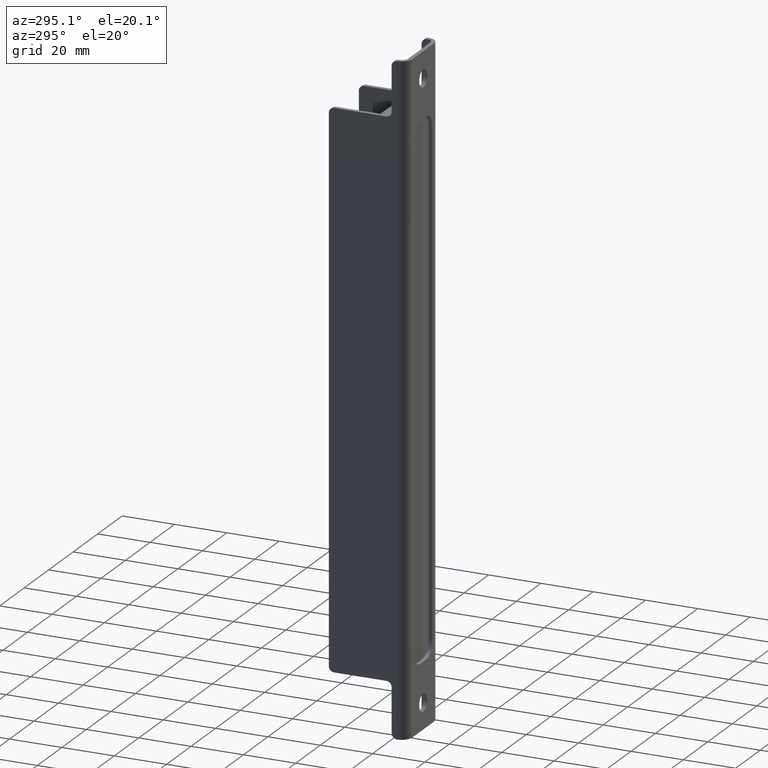
[diagram: clean part render]
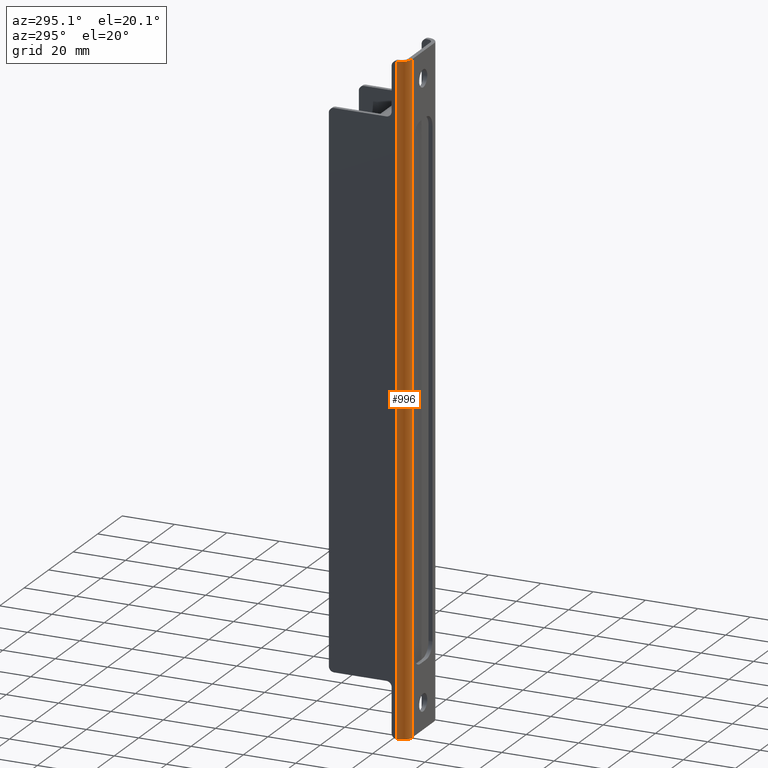
[diagram: same view with one face highlighted and labeled with its STEP entity id]
A machine part, auxiliary view. The second image highlights one B-rep face of the part: STEP entity #996.
In plain terms, the highlighted cylindrical surface (edge-blend (fillet) strip) has radius 4 mm, axis along (0, -0, 1).
Its self-contained STEP definition (entity closure, byte-faithful):
#30=CYLINDRICAL_SURFACE('',#1104,3.99999999999992);
#86=CIRCLE('',#1105,3.99999999999992);
#87=CIRCLE('',#1106,3.99999999999992);
#242=ORIENTED_EDGE('',*,*,#482,.T.);
#243=ORIENTED_EDGE('',*,*,#417,.T.);
#244=ORIENTED_EDGE('',*,*,#483,.F.);
#245=ORIENTED_EDGE('',*,*,#484,.F.);
#417=EDGE_CURVE('',#559,#561,#647,.T.);
#482=EDGE_CURVE('',#606,#559,#86,.T.);
#483=EDGE_CURVE('',#607,#561,#87,.T.);
#484=EDGE_CURVE('',#606,#607,#684,.F.);
#559=VERTEX_POINT('',#1522);
#561=VERTEX_POINT('',#1526);
#606=VERTEX_POINT('',#1658);
#607=VERTEX_POINT('',#1660);
#647=LINE('',#1527,#735);
#684=LINE('',#1661,#772);
#735=VECTOR('',#1199,1000.);
#772=VECTOR('',#1338,1000.);
#840=EDGE_LOOP('',(#242,#243,#244,#245));
#908=FACE_BOUND('',#840,.T.);
#996=ADVANCED_FACE('',(#908),#30,.T.);
#1104=AXIS2_PLACEMENT_3D('',#1656,#1332,#1333);
#1105=AXIS2_PLACEMENT_3D('',#1657,#1334,#1335);
#1106=AXIS2_PLACEMENT_3D('',#1659,#1336,#1337);
#1199=DIRECTION('',(3.32185076179637E-17,-1.66533453693773E-16,1.));
#1332=DIRECTION('',(3.32185076179637E-17,-1.66533453693773E-16,1.));
#1333=DIRECTION('',(0.,-1.,-1.66533453693773E-16));
#1334=DIRECTION('',(-8.93686180177302E-17,-1.66533453693773E-16,1.));
#1335=DIRECTION('',(0.,-1.,-1.66533453693773E-16));
#1336=DIRECTION('',(-8.93686180177302E-17,-1.66533453693773E-16,1.));
#1337=DIRECTION('',(0.,-1.,-1.66533453693773E-16));
#1338=DIRECTION('',(-3.32185076179637E-17,1.66533453693773E-16,-1.));
#1522=CARTESIAN_POINT('',(-9.00000000000003,-29.9999999999999,-125.));
#1526=CARTESIAN_POINT('',(-9.00000000000002,-29.9999999999999,125.));
#1527=CARTESIAN_POINT('',(-9.00000000000002,-29.9999999999999,-3.42028056393259E-15));
#1656=CARTESIAN_POINT('',(-9.00000000000002,-26.,-2.75414674915752E-15));
#1657=CARTESIAN_POINT('',(-9.00000000000003,-25.9999999999999,-125.));
#1658=CARTESIAN_POINT('',(-12.9999999999999,-25.9999999999999,-125.));
#1659=CARTESIAN_POINT('',(-9.00000000000002,-26.,125.));
#1660=CARTESIAN_POINT('',(-12.9999999999999,-25.9999999999999,125.));
#1661=CARTESIAN_POINT('',(-12.9999999999999,-26.,-2.62127271868567E-15));